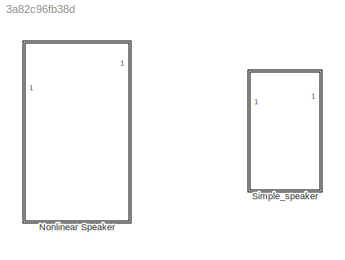
MODEL slx_3a82c96fb38d
KIND library
CONFIG AbsTol = auto
CONFIG EnableMultiTasking = off
CONFIG FixedStep = auto
CONFIG MaxStep = auto
CONFIG MinStep = auto
CONFIG RelTol = 1e-3
CONFIG SampleTimeConstraint = Unconstrained
CONFIG SolverName = VariableStepAuto
CONFIG StartTime = 0.0
CONFIG StopTime = 10.0
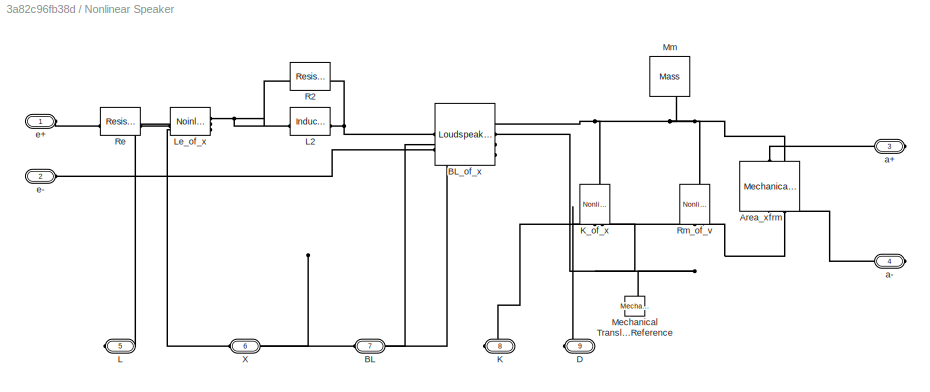
BLOCK [SubSystem] Nonlinear Speaker
  PortSchema = {"entries":[{"content":{"sides":[{"content":{"connectorIds":["LConn1","LConn2"]},"type":"ConnectorPlacement.EquallySpacedRectSide","uuid":"f64a30bf-56c6-47b5-b4bc-71101fcbb95a"},{"content":{"connectorIds":["RConn1","RConn2"],"side":"RIGHT"},"type":"ConnectorPlacement.EquallySpacedRectSide","uuid":"026264a5-a5ab-4ec3-912f-977c3d8fe047"},{"content":{"connectorIds":[],"side":"TOP"},"type":"ConnectorP...<+451ch>
BLOCK [Reference] Nonlinear Speaker/Area_xfrm  REF=acoustical_lib/Acoustical Elements/Mechanical to
Acoustical Converter
(area transformer).
  SourceBlock = acoustical_lib/Acoustical Elements/Mechanical to\nAcoustical Converter\n(area transformer).
  SourceProductName = Acoustical
  SourceType = Mechanical to\nAcoustical Converter\n(area transformer).
BLOCK [PMIOPort] Nonlinear Speaker/BL
  Port = 7
  Side = Right
BLOCK [Reference] Nonlinear Speaker/BL_of_x  REF=acoustical_lib/Moving Coil Speakers/speaker_nonlinear_blocks/Loudspeaker
converter with
variable BL
  SourceBlock = acoustical_lib/Moving Coil Speakers/speaker_nonlinear_blocks/Loudspeaker\nconverter with\nvariable BL
  SourceProductName = Acoustical
  SourceType = Loudspeaker\nconverter with\nvariable BL
BLOCK [PMIOPort] Nonlinear Speaker/D
  Port = 9
  Side = Right
BLOCK [PMIOPort] Nonlinear Speaker/K
  Port = 8
  Side = Right
BLOCK [Reference] Nonlinear Speaker/K_of_x  REF=acoustical_lib/Moving Coil Speakers/speaker_nonlinear_blocks/Nonlinear
Translational Spring
  NameLocation = left
  SourceBlock = acoustical_lib/Moving Coil Speakers/speaker_nonlinear_blocks/Nonlinear\nTranslational Spring
  SourceProductName = Acoustical
  SourceType = Nonlinear\nTranslational Spring
BLOCK [PMIOPort] Nonlinear Speaker/L
  Port = 5
  Side = Right
BLOCK [Reference] Nonlinear Speaker/L2  REF=fl_lib/Electrical/Electrical Elements/Inductor
  SourceBlock = fl_lib/Electrical/Electrical Elements/Inductor
  SourceType = Inductor
BLOCK [Reference] Nonlinear Speaker/Le_of_x  REF=acoustical_lib/Moving Coil Speakers/speaker_nonlinear_blocks/Noinlinear Inductor
  NameLocation = top
  SourceBlock = acoustical_lib/Moving Coil Speakers/speaker_nonlinear_blocks/Noinlinear Inductor
  SourceProductName = Acoustical
  SourceType = Noinlinear Inductor
BLOCK [Reference] Nonlinear Speaker/Mechanical Translational Reference  REF=fl_lib/Mechanical/Translational
Elements/Mechanical
Translational
Reference
  NameLocation = right
  SourceBlock = fl_lib/Mechanical/Translational\nElements/Mechanical\nTranslational\nReference
  SourceType = Mechanical\nTranslational\nReference
BLOCK [Reference] Nonlinear Speaker/Mm  REF=fl_lib/Mechanical/Translational
Elements/Mass
  NameLocation = left
  SourceBlock = fl_lib/Mechanical/Translational\nElements/Mass
  SourceType = Mass
BLOCK [Reference] Nonlinear Speaker/R2  REF=fl_lib/Electrical/Electrical Elements/Resistor
  NameLocation = top
  SourceBlock = fl_lib/Electrical/Electrical Elements/Resistor
  SourceType = Resistor
BLOCK [Reference] Nonlinear Speaker/Re  REF=fl_lib/Electrical/Electrical Elements/Resistor
  SourceBlock = fl_lib/Electrical/Electrical Elements/Resistor
  SourceType = Resistor
BLOCK [Reference] Nonlinear Speaker/Rm_of_v  REF=acoustical_lib/Moving Coil Speakers/speaker_nonlinear_blocks/Nonlinear
Translational Damper
  NameLocation = top
  SourceBlock = acoustical_lib/Moving Coil Speakers/speaker_nonlinear_blocks/Nonlinear\nTranslational Damper
  SourceProductName = Acoustical
  SourceType = Nonlinear\nTranslational Damper
BLOCK [PMIOPort] Nonlinear Speaker/X
  Port = 6
  Side = Right
BLOCK [PMIOPort] Nonlinear Speaker/a+
  Port = 3
  Side = Right
BLOCK [PMIOPort] Nonlinear Speaker/a-
  Port = 4
  Side = Right
BLOCK [PMIOPort] Nonlinear Speaker/e+
  Side = Left
BLOCK [PMIOPort] Nonlinear Speaker/e-
  Port = 2
  Side = Left
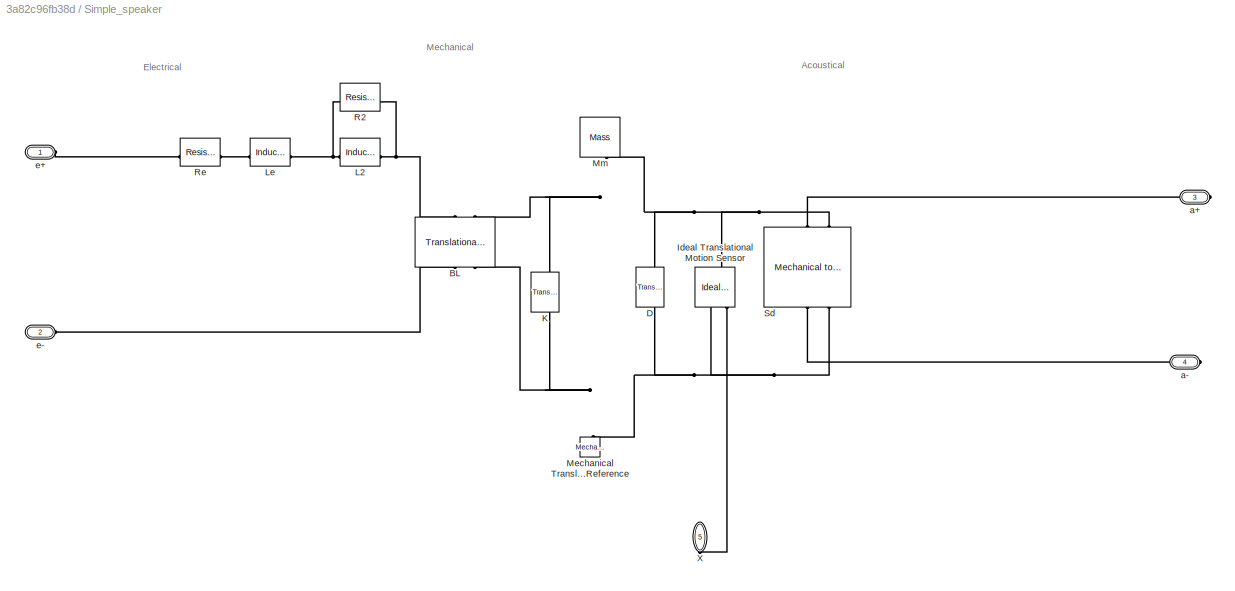
BLOCK [SubSystem] Simple_speaker
BLOCK [Reference] Simple_speaker/BL  REF=fl_lib/Electrical/Electrical Elements/Translational
Electromechanical
Converter
  NameLocation = right
  SourceBlock = fl_lib/Electrical/Electrical Elements/Translational\nElectromechanical\nConverter
  SourceType = Translational\nElectromechanical\nConverter
BLOCK [Reference] Simple_speaker/D  REF=fl_lib/Mechanical/Translational
Elements/Translational Damper
  NameLocation = left
  SourceBlock = fl_lib/Mechanical/Translational\nElements/Translational Damper
  SourceType = Translational Damper
BLOCK [Reference] Simple_speaker/Ideal Translational Motion Sensor  REF=fl_lib/Mechanical/Mechanical Sensors/Ideal Translational
Motion Sensor
  NameLocation = left
  SourceBlock = fl_lib/Mechanical/Mechanical Sensors/Ideal Translational\nMotion Sensor
  SourceType = Ideal Translational\nMotion Sensor
BLOCK [Reference] Simple_speaker/K  REF=fl_lib/Mechanical/Translational
Elements/Translational Spring
  NameLocation = left
  SourceBlock = fl_lib/Mechanical/Translational\nElements/Translational Spring
  SourceType = Translational Spring
BLOCK [Reference] Simple_speaker/L2  REF=fl_lib/Electrical/Electrical Elements/Inductor
  SourceBlock = fl_lib/Electrical/Electrical Elements/Inductor
  SourceType = Inductor
BLOCK [Reference] Simple_speaker/Le  REF=fl_lib/Electrical/Electrical Elements/Inductor
  SourceBlock = fl_lib/Electrical/Electrical Elements/Inductor
  SourceType = Inductor
BLOCK [Reference] Simple_speaker/Mechanical Translational Reference  REF=fl_lib/Mechanical/Translational
Elements/Mechanical
Translational
Reference
  NameLocation = right
  SourceBlock = fl_lib/Mechanical/Translational\nElements/Mechanical\nTranslational\nReference
  SourceType = Mechanical\nTranslational\nReference
BLOCK [Reference] Simple_speaker/Mm  REF=fl_lib/Mechanical/Translational
Elements/Mass
  NameLocation = left
  SourceBlock = fl_lib/Mechanical/Translational\nElements/Mass
  SourceType = Mass
BLOCK [Reference] Simple_speaker/R2  REF=fl_lib/Electrical/Electrical Elements/Resistor
  SourceBlock = fl_lib/Electrical/Electrical Elements/Resistor
  SourceType = Resistor
BLOCK [Reference] Simple_speaker/Re  REF=fl_lib/Electrical/Electrical Elements/Resistor
  SourceBlock = fl_lib/Electrical/Electrical Elements/Resistor
  SourceType = Resistor
BLOCK [Reference] Simple_speaker/Sd  REF=acoustical_lib/Acoustical Elements/Mechanical to
Acoustical Converter
(area transformer).
  NameLocation = left
  SourceBlock = acoustical_lib/Acoustical Elements/Mechanical to\nAcoustical Converter\n(area transformer).
  SourceProductName = Acoustical
  SourceType = Mechanical to\nAcoustical Converter\n(area transformer).
BLOCK [PMIOPort] Simple_speaker/X
  NameLocation = right
  Port = 5
  Side = Right
BLOCK [PMIOPort] Simple_speaker/a+
  NameLocation = top
  Port = 3
  Side = Right
BLOCK [PMIOPort] Simple_speaker/a-
  Port = 4
  Side = Right
BLOCK [PMIOPort] Simple_speaker/e+
  Side = Left
BLOCK [PMIOPort] Simple_speaker/e-
  Port = 2
  Side = Left
ANNOTATION Simple_speaker: Acoustical
ANNOTATION Simple_speaker: Electrical
ANNOTATION Simple_speaker: Mechanical
PLINE Nonlinear Speaker/Area_xfrm:LConn1 -- Nonlinear Speaker/a+:RConn1
PNET net1: Nonlinear Speaker/Area_xfrm:LConn2 -- Nonlinear Speaker/BL_of_x:RConn1 -- Nonlinear Speaker/K_of_x:LConn1 -- Nonlinear Speaker/Mm:LConn1 -- Nonlinear Speaker/Rm_of_v:LConn1
PLINE Nonlinear Speaker/Area_xfrm:RConn1 -- Nonlinear Speaker/a-:RConn1
PNET net2: Nonlinear Speaker/Area_xfrm:RConn2 -- Nonlinear Speaker/BL_of_x:RConn2 -- Nonlinear Speaker/K_of_x:RConn1 -- Nonlinear Speaker/Mechanical Translational Reference:LConn1 -- Nonlinear Speaker/Rm_of_v:RConn1
PLINE Nonlinear Speaker/BL:RConn1 -- Nonlinear Speaker/BL_of_x:RConn3
PNET net3: Nonlinear Speaker/BL_of_x:LConn1 -- Nonlinear Speaker/L2:RConn1 -- Nonlinear Speaker/R2:RConn1
PLINE Nonlinear Speaker/BL_of_x:LConn2 -- Nonlinear Speaker/e-:RConn1
PNET net4: Nonlinear Speaker/BL_of_x:RConn4 -- Nonlinear Speaker/Le_of_x:RConn3 -- Nonlinear Speaker/X:RConn1
PLINE Nonlinear Speaker/D:RConn1 -- Nonlinear Speaker/Rm_of_v:RConn2
PLINE Nonlinear Speaker/K:RConn1 -- Nonlinear Speaker/K_of_x:RConn2
PNET net5: Nonlinear Speaker/L2:LConn1 -- Nonlinear Speaker/Le_of_x:RConn1 -- Nonlinear Speaker/R2:LConn1
PLINE Nonlinear Speaker/L:RConn1 -- Nonlinear Speaker/Le_of_x:RConn2
PLINE Nonlinear Speaker/Le_of_x:LConn1 -- Nonlinear Speaker/Re:RConn1
PLINE Nonlinear Speaker/Re:LConn1 -- Nonlinear Speaker/e+:RConn1
PNET net6: Simple_speaker/BL:LConn1 -- Simple_speaker/L2:RConn1 -- Simple_speaker/R2:RConn1
PNET net7: Simple_speaker/BL:LConn2 -- Simple_speaker/D:LConn1 -- Simple_speaker/Ideal Translational Motion Sensor:LConn1 -- Simple_speaker/K:LConn1 -- Simple_speaker/Mm:LConn1 -- Simple_speaker/Sd:LConn2
PLINE Simple_speaker/BL:RConn1 -- Simple_speaker/e-:RConn1
PNET net8: Simple_speaker/BL:RConn2 -- Simple_speaker/D:RConn1 -- Simple_speaker/Ideal Translational Motion Sensor:RConn1 -- Simple_speaker/K:RConn1 -- Simple_speaker/Mechanical Translational Reference:LConn1 -- Simple_speaker/Sd:RConn2
PLINE Simple_speaker/Ideal Translational Motion Sensor:RConn3 -- Simple_speaker/X:RConn1
PNET net9: Simple_speaker/L2:LConn1 -- Simple_speaker/Le:RConn1 -- Simple_speaker/R2:LConn1
PLINE Simple_speaker/Le:LConn1 -- Simple_speaker/Re:RConn1
PLINE Simple_speaker/Re:LConn1 -- Simple_speaker/e+:RConn1
PLINE Simple_speaker/Sd:LConn1 -- Simple_speaker/a+:RConn1
PLINE Simple_speaker/Sd:RConn1 -- Simple_speaker/a-:RConn1
note: PNET lines group multi-terminal physical nets as a canonical sorted terminal list (undirected conserving connections); 2-terminal nets keep the pairwise PLINE form
